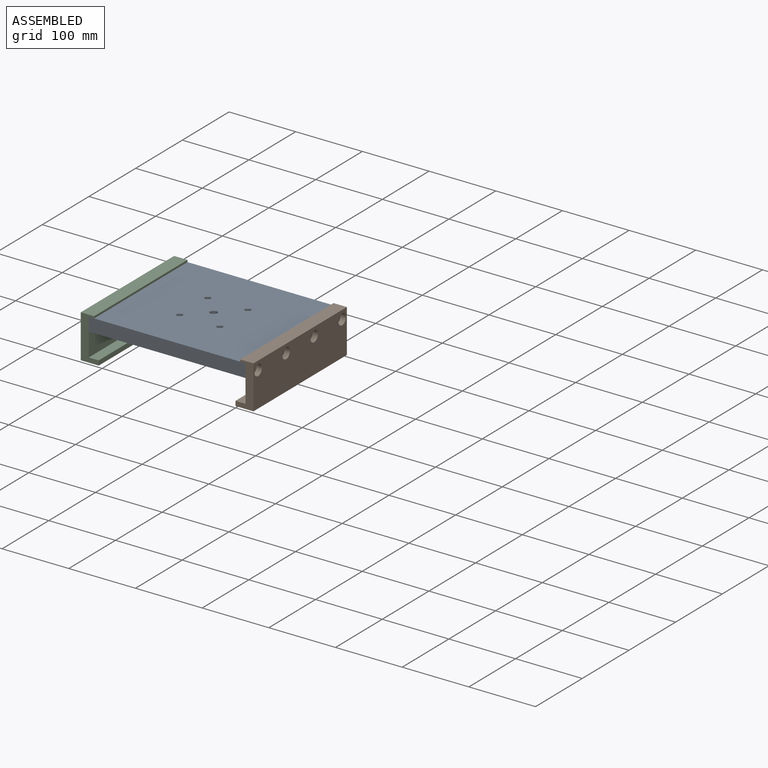
[diagram: assembled view]
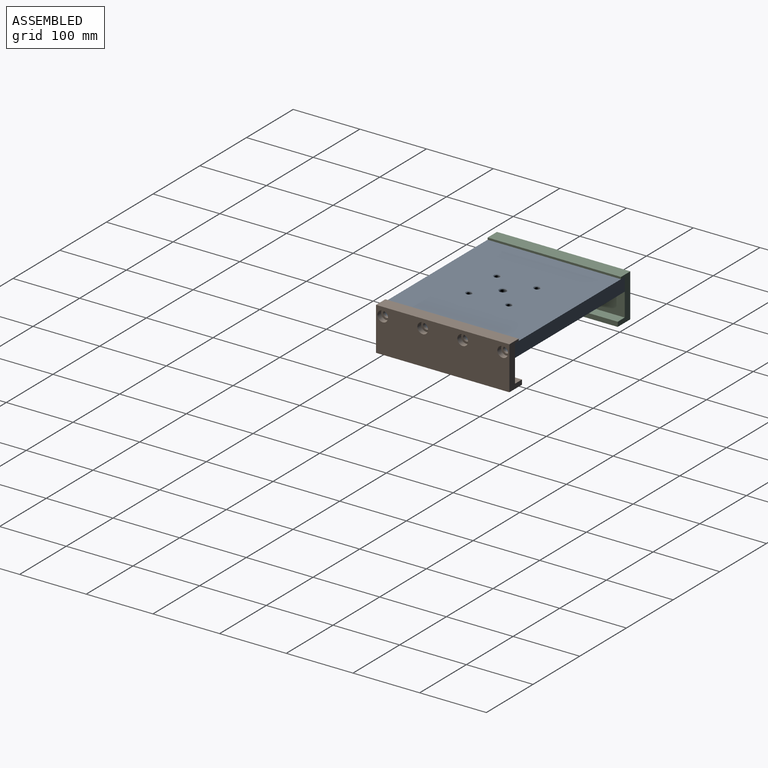
[diagram: assembled view, second angle]
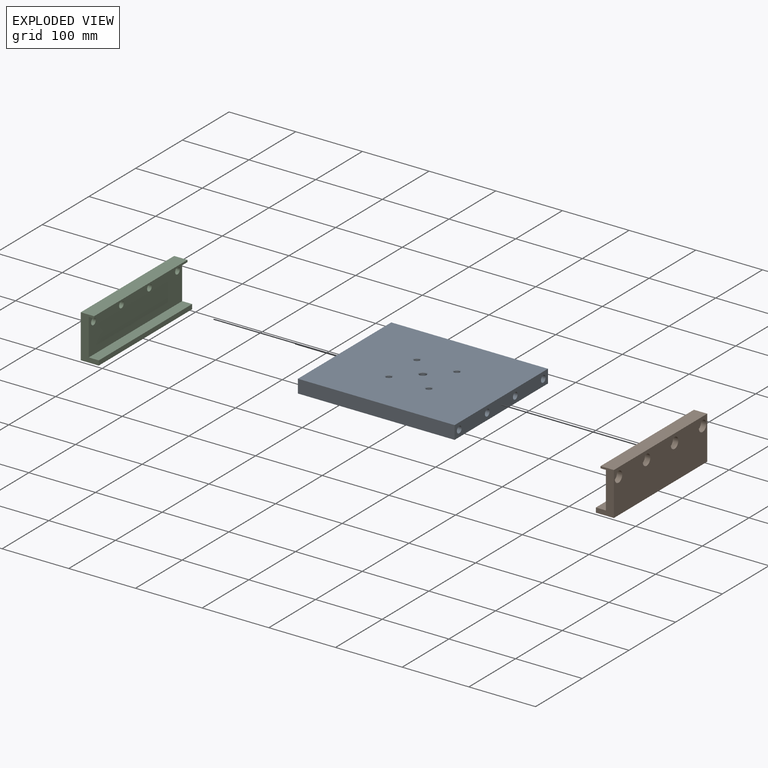
[diagram: exploded view]
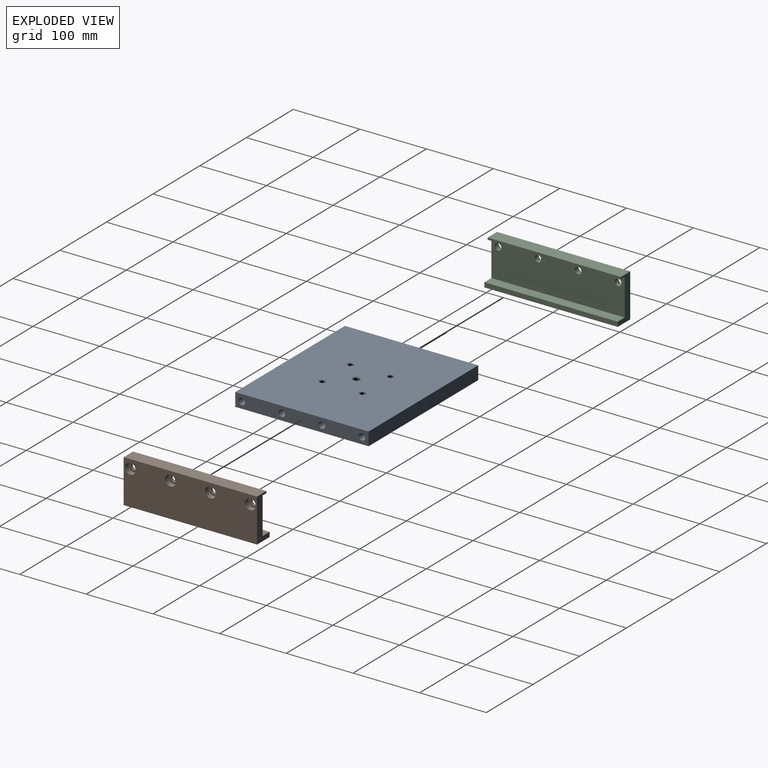
[diagram: exploded view, second angle]
ASSEMBLY  parts=3 mates=2
PART A: 37 faces, bbox 235x200x20 mm
  f0: plane 235x200mm, normal (0,0,-1), area 45668mm2, adj f1,f3,f4,f5,f27,f28,f29,f30
  f1: plane 200x20mm, normal (1,0,0), area 3685.8mm2, adj f0,f2,f4,f5,f19,f21,f23,f25
  f2: plane 235x200mm, normal (0,0,1), area 46572.7mm2, adj f1,f3,f4,f5,f32,f33,f34,f35
  f3: plane 200x20mm, normal (-1,0,0), area 3685.8mm2, adj f0,f2,f4,f5,f11,f13,f15,f17
  f4: plane 235x20mm, normal (0,1,0), area 4700mm2, adj f0,f1,f2,f3
  f5: plane 235x20mm, normal (0,-1,0), area 4700mm2, adj f0,f1,f2,f3
  f6: cylinder r=5mm len=14mm, axis (0,0,-1), area 439.8mm2, adj f31,f34
  f7: cylinder r=4mm len=14mm, axis (0,0,-1), area 351.9mm2, adj f28,f36
  f8: cylinder r=4mm len=14mm, axis (0,0,-1), area 351.9mm2, adj f29,f32
  f9: cylinder r=4mm len=14mm, axis (0,0,-1), area 351.9mm2, adj f30,f33
  f10: cylinder r=4mm len=14mm, axis (0,0,-1), area 351.9mm2, adj f27,f35
  f11: cylinder r=5mm len=40mm, axis (-1,0,0), area 1256.6mm2, adj f3,f12
  f12: plane 10x10mm, normal (-1,0,0), area 78.5mm2, adj f11
  f13: cylinder r=5mm len=40mm, axis (-1,0,0), area 1256.6mm2, adj f3,f14
  f14: plane 10x10mm, normal (-1,0,0), area 78.5mm2, adj f13
  f15: cylinder r=5mm len=40mm, axis (-1,0,0), area 1256.6mm2, adj f3,f16
  f16: plane 10x10mm, normal (-1,0,0), area 78.5mm2, adj f15
  f17: cylinder r=5mm len=40mm, axis (-1,0,0), area 1256.6mm2, adj f3,f18
  f18: plane 10x10mm, normal (-1,0,0), area 78.5mm2, adj f17
  f19: cylinder r=5mm len=40mm, axis (1,0,0), area 1256.6mm2, adj f1,f20
  f20: plane 10x10mm, normal (1,0,0), area 78.5mm2, adj f19
  f21: cylinder r=5mm len=40mm, axis (1,0,0), area 1256.6mm2, adj f1,f22
  f22: plane 10x10mm, normal (1,0,0), area 78.5mm2, adj f21
  f23: cylinder r=5mm len=40mm, axis (1,0,0), area 1256.6mm2, adj f1,f24
  f24: plane 10x10mm, normal (1,0,0), area 78.5mm2, adj f23
  f25: cylinder r=5mm len=40mm, axis (1,0,0), area 1256.6mm2, adj f1,f26
  f26: plane 10x10mm, normal (1,0,0), area 78.5mm2, adj f25
  f27: cone r=4mm half-angle=45deg, axis (0,0,-1), area 288.8mm2, adj f0,f10
  f28: cone r=4mm half-angle=45deg, axis (0,0,-1), area 288.8mm2, adj f0,f7
  f29: cone r=4mm half-angle=45deg, axis (0,0,-1), area 288.8mm2, adj f0,f8
  f30: cone r=4mm half-angle=45deg, axis (0,0,-1), area 288.8mm2, adj f0,f9
  f31: cone r=5mm half-angle=45deg, axis (0,0,-1), area 333.2mm2, adj f0,f6
  f32: cone r=4mm half-angle=45deg, axis (0,0,1), area 40mm2, adj f2,f8
  f33: cone r=4mm half-angle=45deg, axis (0,0,1), area 40mm2, adj f2,f9
  f34: cone r=5mm half-angle=45deg, axis (0,0,1), area 48.9mm2, adj f2,f6
  f35: cone r=4mm half-angle=45deg, axis (0,0,1), area 40mm2, adj f2,f10
  f36: cone r=4mm half-angle=45deg, axis (0,0,1), area 40mm2, adj f2,f7
PART B: 22 faces, bbox 27x200x65 mm
  f0: cylinder r=5mm len=10mm, axis (-1,0,0), area 125.7mm2, adj f7,f21
  f1: cylinder r=5mm len=10mm, axis (-1,0,0), area 125.7mm2, adj f7,f19
  f2: cylinder r=5mm len=10mm, axis (-1,0,0), area 125.7mm2, adj f7,f17
  f3: cylinder r=5mm len=10mm, axis (-1,0,0), area 125.7mm2, adj f7,f15
  f4: plane 200x20mm, normal (0,0,1), area 4000mm2, adj f5,f11,f12,f13
  f5: plane 200x3mm, normal (-1,0,0), area 600mm2, adj f4,f6,f12,f13
  f6: plane 200x8mm, normal (0,0,-1), area 1600mm2, adj f5,f7,f12,f13
  f7: plane 200x55mm, normal (-1,0,0), area 10685.8mm2, adj f0,f1,f2,f3,f6,f8,f12,f13
  f8: plane 200x15mm, normal (0,0,1), area 3000mm2, adj f7,f9,f12,f13
  f9: plane 200x7mm, normal (-1,0,0), area 1400mm2, adj f8,f10,f12,f13
  f10: plane 200x27mm, normal (0,0,-1), area 5400mm2, adj f9,f11,f12,f13
  f11: plane 200x65mm, normal (1,0,0), area 12195.8mm2, adj f4,f10,f12,f13,f14,f16,f18,f20
  f12: plane 65x27mm, normal (0,1,0), area 909mm2, adj f4,f5,f6,f7,f8,f9,f10,f11
  f13: plane 65x27mm, normal (0,-1,0), area 909mm2, adj f4,f5,f6,f7,f8,f9,f10,f11
  f14: cylinder r=8mm len=16mm, axis (1,0,0), area 402.1mm2, adj f11,f15
  f15: plane 16x16mm, normal (1,0,0), area 122.5mm2, adj f3,f14
  f16: cylinder r=8mm len=16mm, axis (1,0,0), area 402.1mm2, adj f11,f17
  f17: plane 16x16mm, normal (1,0,0), area 122.5mm2, adj f2,f16
  f18: cylinder r=8mm len=16mm, axis (1,0,0), area 402.1mm2, adj f11,f19
  f19: plane 16x16mm, normal (1,0,0), area 122.5mm2, adj f1,f18
  f20: cylinder r=8mm len=16mm, axis (1,0,0), area 402.1mm2, adj f11,f21
  f21: plane 16x16mm, normal (1,0,0), area 122.5mm2, adj f0,f20
PART C: same geometry as B
PLACE A t=(0.53,-104.51,-7.23)mm
PLACE B t=(117.17,-104.51,-21.89)mm
PLACE C rot(axis=(0,0,1),180deg) t=(-116.11,95.49,-21.89)mm
MATE fastened C.f0 <-> A.f15  axis (1,0,0) through (-116.97,85.49,-7.23)mm
MATE fastened B.f3 <-> A.f19  axis (-1,0,0) through (118.03,85.49,-7.23)mm
